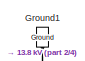
[diagram: root canvas - part 1/4, top left region]
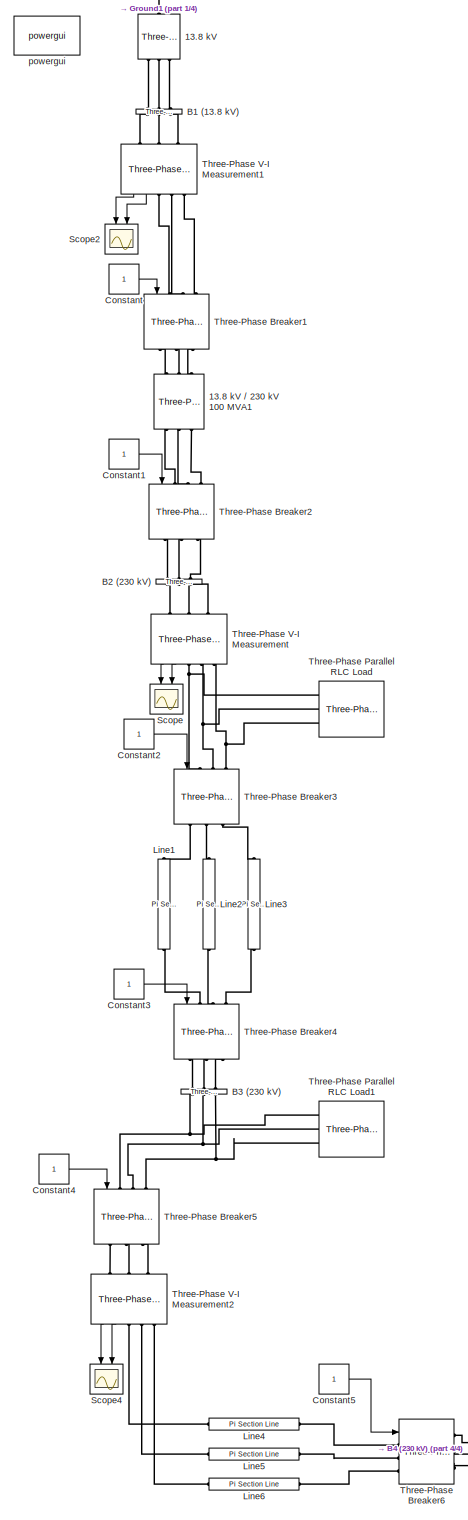
[diagram: root canvas - part 2/4, left side, full height]
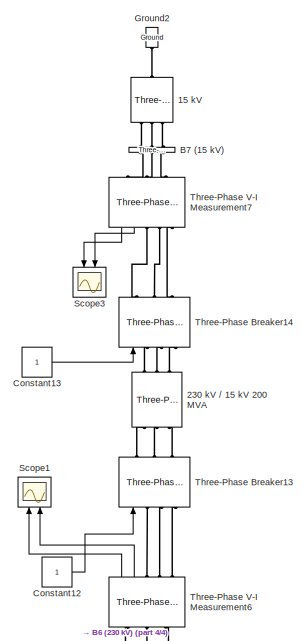
[diagram: root canvas - part 3/4, top right region]
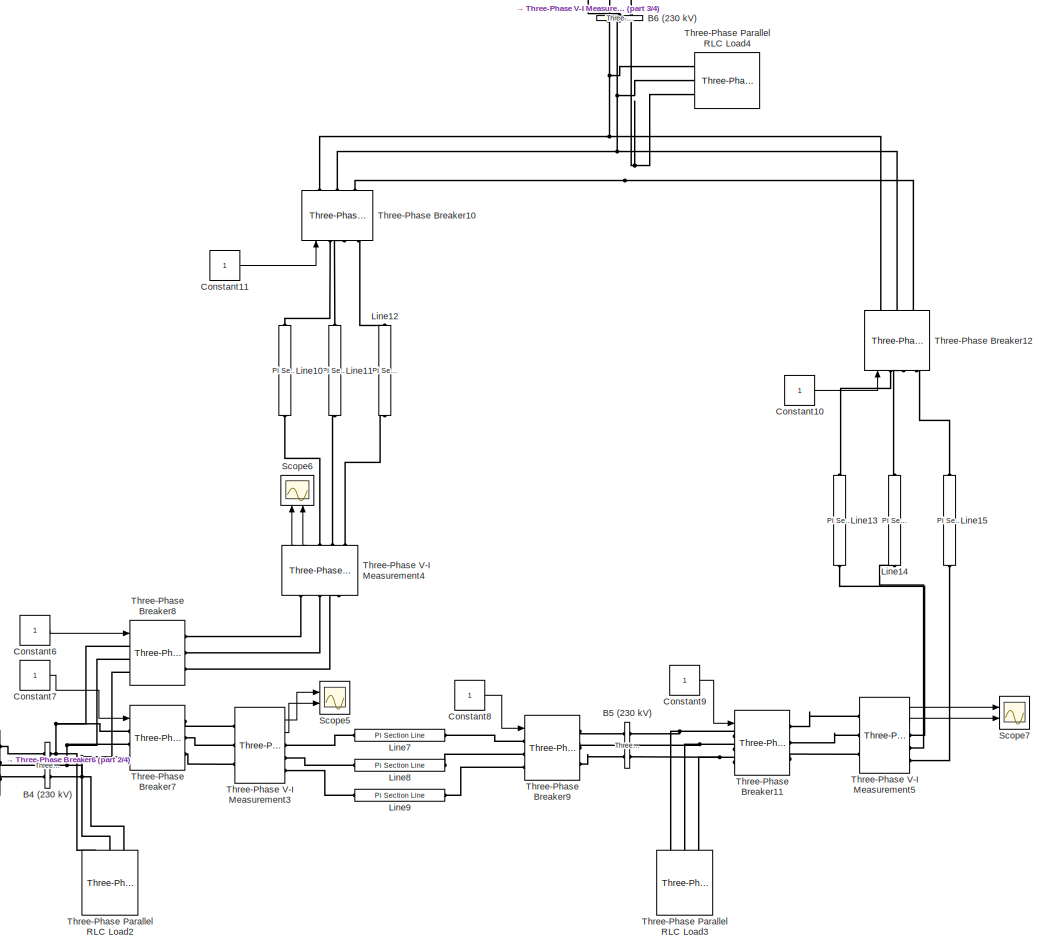
[diagram: root canvas - part 4/4, bottom center region]
MODEL slx_fed54474d881
KIND model
CONFIG AbsTol = auto
CONFIG EnableMultiTasking = on
CONFIG FixedStep = auto
CONFIG MaxStep = auto
CONFIG MinStep = auto
CONFIG RelTol = 1e-3
CONFIG SampleTimeConstraint = Unconstrained
CONFIG Solver = VariableStepAuto
CONFIG SolverName = VariableStepAuto
CONFIG StartTime = 0.0
CONFIG StopTime = .5
BLOCK [Reference] 13.8 kV  REF=powerlib/Electrical
Sources/Three-Phase
Programmable
Voltage Source
  Ports = [0, 0, 0, 0, 0, 1, 3]
  SourceBlock = powerlib/Electrical\nSources/Three-Phase\nProgrammable\nVoltage Source
  SourceProductBaseCode = PS
  SourceProductName = Simscape Power Systems
  SourceType = Three-Phase Programmable Voltage Source
BLOCK [Reference] 13.8 kV // 230 kV 100 MVA1  REF=powerlib/Elements/Three-Phase
Transformer
(Two Windings)
  AttributesFormatString = \n
  Ports = [0, 0, 0, 0, 0, 3, 3]
  SourceBlock = powerlib/Elements/Three-Phase\nTransformer\n(Two Windings)
  SourceProductBaseCode = PS
  SourceProductName = Simscape Power Systems
  SourceType = Three-Phase Transformer (Two Windings)
BLOCK [Reference] 15 kV  REF=powerlib/Electrical
Sources/Three-Phase
Programmable
Voltage Source
  Ports = [0, 0, 0, 0, 0, 1, 3]
  SourceBlock = powerlib/Electrical\nSources/Three-Phase\nProgrammable\nVoltage Source
  SourceProductBaseCode = PS
  SourceProductName = Simscape Power Systems
  SourceType = Three-Phase Programmable Voltage Source
BLOCK [Reference] 230 kV // 15 kV 200 MVA  REF=powerlib/Elements/Three-Phase
Transformer
(Two Windings)
  AttributesFormatString = \n
  Ports = [0, 0, 0, 0, 0, 3, 3]
  SourceBlock = powerlib/Elements/Three-Phase\nTransformer\n(Two Windings)
  SourceProductBaseCode = PS
  SourceProductName = Simscape Power Systems
  SourceType = Three-Phase Transformer (Two Windings)
BLOCK [Reference] B1 (13.8 kV)  REF=powerlib/Measurements/Three-Phase
V-I Measurement
  Ports = [0, 0, 0, 0, 0, 3, 3]
  SourceBlock = powerlib/Measurements/Three-Phase\nV-I Measurement
  SourceProductBaseCode = PS
  SourceProductName = Simscape Power Systems
  SourceType = Three-Phase VI Measurement
BLOCK [Reference] B2 (230 kV)  REF=powerlib/Measurements/Three-Phase
V-I Measurement
  Ports = [0, 0, 0, 0, 0, 3, 3]
  SourceBlock = powerlib/Measurements/Three-Phase\nV-I Measurement
  SourceProductBaseCode = PS
  SourceProductName = Simscape Power Systems
  SourceType = Three-Phase VI Measurement
BLOCK [Reference] B3 (230 kV)  REF=powerlib/Measurements/Three-Phase
V-I Measurement
  Ports = [0, 0, 0, 0, 0, 3, 3]
  SourceBlock = powerlib/Measurements/Three-Phase\nV-I Measurement
  SourceProductBaseCode = PS
  SourceProductName = Simscape Power Systems
  SourceType = Three-Phase VI Measurement
BLOCK [Reference] B4 (230 kV)  REF=powerlib/Measurements/Three-Phase
V-I Measurement
  Ports = [0, 0, 0, 0, 0, 3, 3]
  SourceBlock = powerlib/Measurements/Three-Phase\nV-I Measurement
  SourceProductBaseCode = PS
  SourceProductName = Simscape Power Systems
  SourceType = Three-Phase VI Measurement
BLOCK [Reference] B5 (230 kV)  REF=powerlib/Measurements/Three-Phase
V-I Measurement
  Ports = [0, 0, 0, 0, 0, 3, 3]
  SourceBlock = powerlib/Measurements/Three-Phase\nV-I Measurement
  SourceProductBaseCode = PS
  SourceProductName = Simscape Power Systems
  SourceType = Three-Phase VI Measurement
BLOCK [Reference] B6 (230 kV)  REF=powerlib/Measurements/Three-Phase
V-I Measurement
  Ports = [0, 0, 0, 0, 0, 3, 3]
  SourceBlock = powerlib/Measurements/Three-Phase\nV-I Measurement
  SourceProductBaseCode = PS
  SourceProductName = Simscape Power Systems
  SourceType = Three-Phase VI Measurement
BLOCK [Reference] B7 (15 kV)  REF=powerlib/Measurements/Three-Phase
V-I Measurement
  Ports = [0, 0, 0, 0, 0, 3, 3]
  SourceBlock = powerlib/Measurements/Three-Phase\nV-I Measurement
  SourceProductBaseCode = PS
  SourceProductName = Simscape Power Systems
  SourceType = Three-Phase VI Measurement
BLOCK [Constant] Constant
BLOCK [Constant] Constant1
BLOCK [Constant] Constant10
BLOCK [Constant] Constant11
BLOCK [Constant] Constant12
BLOCK [Constant] Constant13
BLOCK [Constant] Constant2
BLOCK [Constant] Constant3
BLOCK [Constant] Constant4
BLOCK [Constant] Constant5
BLOCK [Constant] Constant6
BLOCK [Constant] Constant7
BLOCK [Constant] Constant8
BLOCK [Constant] Constant9
BLOCK [Reference] Ground1  REF=powerlib/Elements/Ground
  AttributesFormatString = \n
  Ports = [0, 0, 0, 0, 0, 1]
  SourceBlock = powerlib/Elements/Ground
  SourceProductBaseCode = PS
  SourceProductName = Simscape Power Systems
  SourceType = Ground
BLOCK [Reference] Ground2  REF=powerlib/Elements/Ground
  AttributesFormatString = \n
  Ports = [0, 0, 0, 0, 0, 1]
  SourceBlock = powerlib/Elements/Ground
  SourceProductBaseCode = PS
  SourceProductName = Simscape Power Systems
  SourceType = Ground
BLOCK [Reference] Line1  REF=powerlib/Elements/Pi Section Line
  AttributesFormatString = \n
  Ports = [0, 0, 0, 0, 0, 1, 1]
  SourceBlock = powerlib/Elements/Pi Section Line
  SourceProductBaseCode = PS
  SourceProductName = Simscape Power Systems
  SourceType = Pi Section Line
BLOCK [Reference] Line10  REF=powerlib/Elements/Pi Section Line
  AttributesFormatString = \n
  Ports = [0, 0, 0, 0, 0, 1, 1]
  SourceBlock = powerlib/Elements/Pi Section Line
  SourceProductBaseCode = PS
  SourceProductName = Simscape Power Systems
  SourceType = Pi Section Line
BLOCK [Reference] Line11  REF=powerlib/Elements/Pi Section Line
  AttributesFormatString = \n
  Ports = [0, 0, 0, 0, 0, 1, 1]
  SourceBlock = powerlib/Elements/Pi Section Line
  SourceProductBaseCode = PS
  SourceProductName = Simscape Power Systems
  SourceType = Pi Section Line
BLOCK [Reference] Line12  REF=powerlib/Elements/Pi Section Line
  AttributesFormatString = \n
  Ports = [0, 0, 0, 0, 0, 1, 1]
  SourceBlock = powerlib/Elements/Pi Section Line
  SourceProductBaseCode = PS
  SourceProductName = Simscape Power Systems
  SourceType = Pi Section Line
BLOCK [Reference] Line13  REF=powerlib/Elements/Pi Section Line
  AttributesFormatString = \n
  Ports = [0, 0, 0, 0, 0, 1, 1]
  SourceBlock = powerlib/Elements/Pi Section Line
  SourceProductBaseCode = PS
  SourceProductName = Simscape Power Systems
  SourceType = Pi Section Line
BLOCK [Reference] Line14  REF=powerlib/Elements/Pi Section Line
  AttributesFormatString = \n
  Ports = [0, 0, 0, 0, 0, 1, 1]
  SourceBlock = powerlib/Elements/Pi Section Line
  SourceProductBaseCode = PS
  SourceProductName = Simscape Power Systems
  SourceType = Pi Section Line
BLOCK [Reference] Line15  REF=powerlib/Elements/Pi Section Line
  AttributesFormatString = \n
  Ports = [0, 0, 0, 0, 0, 1, 1]
  SourceBlock = powerlib/Elements/Pi Section Line
  SourceProductBaseCode = PS
  SourceProductName = Simscape Power Systems
  SourceType = Pi Section Line
BLOCK [Reference] Line2  REF=powerlib/Elements/Pi Section Line
  AttributesFormatString = \n
  Ports = [0, 0, 0, 0, 0, 1, 1]
  SourceBlock = powerlib/Elements/Pi Section Line
  SourceProductBaseCode = PS
  SourceProductName = Simscape Power Systems
  SourceType = Pi Section Line
BLOCK [Reference] Line3  REF=powerlib/Elements/Pi Section Line
  AttributesFormatString = \n
  Ports = [0, 0, 0, 0, 0, 1, 1]
  SourceBlock = powerlib/Elements/Pi Section Line
  SourceProductBaseCode = PS
  SourceProductName = Simscape Power Systems
  SourceType = Pi Section Line
BLOCK [Reference] Line4  REF=powerlib/Elements/Pi Section Line
  AttributesFormatString = \n
  Ports = [0, 0, 0, 0, 0, 1, 1]
  SourceBlock = powerlib/Elements/Pi Section Line
  SourceProductBaseCode = PS
  SourceProductName = Simscape Power Systems
  SourceType = Pi Section Line
BLOCK [Reference] Line5  REF=powerlib/Elements/Pi Section Line
  AttributesFormatString = \n
  Ports = [0, 0, 0, 0, 0, 1, 1]
  SourceBlock = powerlib/Elements/Pi Section Line
  SourceProductBaseCode = PS
  SourceProductName = Simscape Power Systems
  SourceType = Pi Section Line
BLOCK [Reference] Line6  REF=powerlib/Elements/Pi Section Line
  AttributesFormatString = \n
  Ports = [0, 0, 0, 0, 0, 1, 1]
  SourceBlock = powerlib/Elements/Pi Section Line
  SourceProductBaseCode = PS
  SourceProductName = Simscape Power Systems
  SourceType = Pi Section Line
BLOCK [Reference] Line7  REF=powerlib/Elements/Pi Section Line
  AttributesFormatString = \n
  Ports = [0, 0, 0, 0, 0, 1, 1]
  SourceBlock = powerlib/Elements/Pi Section Line
  SourceProductBaseCode = PS
  SourceProductName = Simscape Power Systems
  SourceType = Pi Section Line
BLOCK [Reference] Line8  REF=powerlib/Elements/Pi Section Line
  AttributesFormatString = \n
  Ports = [0, 0, 0, 0, 0, 1, 1]
  SourceBlock = powerlib/Elements/Pi Section Line
  SourceProductBaseCode = PS
  SourceProductName = Simscape Power Systems
  SourceType = Pi Section Line
BLOCK [Reference] Line9  REF=powerlib/Elements/Pi Section Line
  AttributesFormatString = \n
  Ports = [0, 0, 0, 0, 0, 1, 1]
  SourceBlock = powerlib/Elements/Pi Section Line
  SourceProductBaseCode = PS
  SourceProductName = Simscape Power Systems
  SourceType = Pi Section Line
BLOCK [Scope] Scope
  Floating = off
  NumInputPorts = 2
  Ports = [2]
  ScopeSpecificationString = C++SS(StrPVP('Location','[1, 46, 1281, 769]'),StrPVP('Open','off'),MxPVP('AxesTitles',53,'struct(''axes1'',''%<SignalLabel>'',''axes2'',''%<SignalLabel>'')'),MxPVP('ScopeGraphics',56,'struct(''FigureColor'',''[0.5 0.5 0.5]'',''AxesColor'',''[0 0 0]'',''AxesTickColor'',''[1 1 1]'',''LineColors'',''[1 1 0;1 0 1;0 1 1;1 0 0;0 1 0;0 0 1]'',''LineStyles'',''-|-|-|-|-|-'',''LineWidths'',''[0.5 0.5 0.5 0...<+311ch>
BLOCK [Scope] Scope1
  Floating = off
  NumInputPorts = 2
  Ports = [2]
  ScopeSpecificationString = C++SS(StrPVP('Location','[1, 46, 1281, 769]'),StrPVP('Open','off'),MxPVP('AxesTitles',53,'struct(''axes1'',''%<SignalLabel>'',''axes2'',''%<SignalLabel>'')'),MxPVP('ScopeGraphics',56,'struct(''FigureColor'',''[0.5 0.5 0.5]'',''AxesColor'',''[0 0 0]'',''AxesTickColor'',''[1 1 1]'',''LineColors'',''[1 1 0;1 0 1;0 1 1;1 0 0;0 1 0;0 0 1]'',''LineStyles'',''-|-|-|-|-|-'',''LineWidths'',''[0.5 0.5 0.5 0...<+343ch>  <repeated x7 — deduplicated; at blocks: Scope1, Scope2, Scope3, Scope4, Scope5, Scope6, Scope7>
BLOCK [Scope] Scope2
  Floating = off
  NumInputPorts = 2
  Ports = [2]
BLOCK [Scope] Scope3
  Floating = off
  NumInputPorts = 2
  Ports = [2]
BLOCK [Scope] Scope4
  Floating = off
  NumInputPorts = 2
  Ports = [2]
BLOCK [Scope] Scope5
  Floating = off
  NumInputPorts = 2
  Ports = [2]
BLOCK [Scope] Scope6
  Floating = off
  NumInputPorts = 2
  Ports = [2]
BLOCK [Scope] Scope7
  Floating = off
  NumInputPorts = 2
  Ports = [2]
BLOCK [Reference] Three-Phase Breaker1  REF=powerlib/Elements/Three-Phase Breaker
  Ports = [1, 0, 0, 0, 0, 3, 3]
  SourceBlock = powerlib/Elements/Three-Phase Breaker
  SourceProductBaseCode = PS
  SourceProductName = Simscape Power Systems
  SourceType = Three-Phase Breaker
BLOCK [Reference] Three-Phase Breaker10  REF=powerlib/Elements/Three-Phase Breaker
  Ports = [1, 0, 0, 0, 0, 3, 3]
  SourceBlock = powerlib/Elements/Three-Phase Breaker
  SourceProductBaseCode = PS
  SourceProductName = Simscape Power Systems
  SourceType = Three-Phase Breaker
BLOCK [Reference] Three-Phase Breaker11  REF=powerlib/Elements/Three-Phase Breaker
  Ports = [1, 0, 0, 0, 0, 3, 3]
  SourceBlock = powerlib/Elements/Three-Phase Breaker
  SourceProductBaseCode = PS
  SourceProductName = Simscape Power Systems
  SourceType = Three-Phase Breaker
BLOCK [Reference] Three-Phase Breaker12  REF=powerlib/Elements/Three-Phase Breaker
  Ports = [1, 0, 0, 0, 0, 3, 3]
  SourceBlock = powerlib/Elements/Three-Phase Breaker
  SourceProductBaseCode = PS
  SourceProductName = Simscape Power Systems
  SourceType = Three-Phase Breaker
BLOCK [Reference] Three-Phase Breaker13  REF=powerlib/Elements/Three-Phase Breaker
  Ports = [1, 0, 0, 0, 0, 3, 3]
  SourceBlock = powerlib/Elements/Three-Phase Breaker
  SourceProductBaseCode = PS
  SourceProductName = Simscape Power Systems
  SourceType = Three-Phase Breaker
BLOCK [Reference] Three-Phase Breaker14  REF=powerlib/Elements/Three-Phase Breaker
  Ports = [1, 0, 0, 0, 0, 3, 3]
  SourceBlock = powerlib/Elements/Three-Phase Breaker
  SourceProductBaseCode = PS
  SourceProductName = Simscape Power Systems
  SourceType = Three-Phase Breaker
BLOCK [Reference] Three-Phase Breaker2  REF=powerlib/Elements/Three-Phase Breaker
  Ports = [1, 0, 0, 0, 0, 3, 3]
  SourceBlock = powerlib/Elements/Three-Phase Breaker
  SourceProductBaseCode = PS
  SourceProductName = Simscape Power Systems
  SourceType = Three-Phase Breaker
BLOCK [Reference] Three-Phase Breaker3  REF=powerlib/Elements/Three-Phase Breaker
  Ports = [1, 0, 0, 0, 0, 3, 3]
  SourceBlock = powerlib/Elements/Three-Phase Breaker
  SourceProductBaseCode = PS
  SourceProductName = Simscape Power Systems
  SourceType = Three-Phase Breaker
BLOCK [Reference] Three-Phase Breaker4  REF=powerlib/Elements/Three-Phase Breaker
  Ports = [1, 0, 0, 0, 0, 3, 3]
  SourceBlock = powerlib/Elements/Three-Phase Breaker
  SourceProductBaseCode = PS
  SourceProductName = Simscape Power Systems
  SourceType = Three-Phase Breaker
BLOCK [Reference] Three-Phase Breaker5  REF=powerlib/Elements/Three-Phase Breaker
  Ports = [1, 0, 0, 0, 0, 3, 3]
  SourceBlock = powerlib/Elements/Three-Phase Breaker
  SourceProductBaseCode = PS
  SourceProductName = Simscape Power Systems
  SourceType = Three-Phase Breaker
BLOCK [Reference] Three-Phase Breaker6  REF=powerlib/Elements/Three-Phase Breaker
  Ports = [1, 0, 0, 0, 0, 3, 3]
  SourceBlock = powerlib/Elements/Three-Phase Breaker
  SourceProductBaseCode = PS
  SourceProductName = Simscape Power Systems
  SourceType = Three-Phase Breaker
BLOCK [Reference] Three-Phase Breaker7  REF=powerlib/Elements/Three-Phase Breaker
  Ports = [1, 0, 0, 0, 0, 3, 3]
  SourceBlock = powerlib/Elements/Three-Phase Breaker
  SourceProductBaseCode = PS
  SourceProductName = Simscape Power Systems
  SourceType = Three-Phase Breaker
BLOCK [Reference] Three-Phase Breaker8  REF=powerlib/Elements/Three-Phase Breaker
  Ports = [1, 0, 0, 0, 0, 3, 3]
  SourceBlock = powerlib/Elements/Three-Phase Breaker
  SourceProductBaseCode = PS
  SourceProductName = Simscape Power Systems
  SourceType = Three-Phase Breaker
BLOCK [Reference] Three-Phase Breaker9  REF=powerlib/Elements/Three-Phase Breaker
  Ports = [1, 0, 0, 0, 0, 3, 3]
  SourceBlock = powerlib/Elements/Three-Phase Breaker
  SourceProductBaseCode = PS
  SourceProductName = Simscape Power Systems
  SourceType = Three-Phase Breaker
BLOCK [Reference] Three-Phase Parallel RLC Load  REF=powerlib/Elements/Three-Phase
Parallel RLC Load
  AttributesFormatString = \n
  Ports = [0, 0, 0, 0, 0, 3]
  SourceBlock = powerlib/Elements/Three-Phase\nParallel RLC Load
  SourceProductBaseCode = PS
  SourceProductName = Simscape Power Systems
  SourceType = Three-Phase Parallel RLC Load
BLOCK [Reference] Three-Phase Parallel RLC Load1  REF=powerlib/Elements/Three-Phase
Parallel RLC Load
  AttributesFormatString = \n
  Ports = [0, 0, 0, 0, 0, 3]
  SourceBlock = powerlib/Elements/Three-Phase\nParallel RLC Load
  SourceProductBaseCode = PS
  SourceProductName = Simscape Power Systems
  SourceType = Three-Phase Parallel RLC Load
BLOCK [Reference] Three-Phase Parallel RLC Load2  REF=powerlib/Elements/Three-Phase
Parallel RLC Load
  AttributesFormatString = \n
  Ports = [0, 0, 0, 0, 0, 3]
  SourceBlock = powerlib/Elements/Three-Phase\nParallel RLC Load
  SourceProductBaseCode = PS
  SourceProductName = Simscape Power Systems
  SourceType = Three-Phase Parallel RLC Load
BLOCK [Reference] Three-Phase Parallel RLC Load3  REF=powerlib/Elements/Three-Phase
Parallel RLC Load
  AttributesFormatString = \n
  Ports = [0, 0, 0, 0, 0, 3]
  SourceBlock = powerlib/Elements/Three-Phase\nParallel RLC Load
  SourceProductBaseCode = PS
  SourceProductName = Simscape Power Systems
  SourceType = Three-Phase Parallel RLC Load
BLOCK [Reference] Three-Phase Parallel RLC Load4  REF=powerlib/Elements/Three-Phase
Parallel RLC Load
  AttributesFormatString = \n
  Ports = [0, 0, 0, 0, 0, 3]
  SourceBlock = powerlib/Elements/Three-Phase\nParallel RLC Load
  SourceProductBaseCode = PS
  SourceProductName = Simscape Power Systems
  SourceType = Three-Phase Parallel RLC Load
BLOCK [Reference] Three-Phase V-I Measurement  REF=powerlib/Measurements/Three-Phase
V-I Measurement
  Ports = [0, 2, 0, 0, 0, 3, 3]
  SourceBlock = powerlib/Measurements/Three-Phase\nV-I Measurement
  SourceProductBaseCode = PS
  SourceProductName = Simscape Power Systems
  SourceType = Three-Phase VI Measurement
BLOCK [Reference] Three-Phase V-I Measurement1  REF=powerlib/Measurements/Three-Phase
V-I Measurement
  Ports = [0, 2, 0, 0, 0, 3, 3]
  SourceBlock = powerlib/Measurements/Three-Phase\nV-I Measurement
  SourceProductBaseCode = PS
  SourceProductName = Simscape Power Systems
  SourceType = Three-Phase VI Measurement
BLOCK [Reference] Three-Phase V-I Measurement2  REF=powerlib/Measurements/Three-Phase
V-I Measurement
  Ports = [0, 2, 0, 0, 0, 3, 3]
  SourceBlock = powerlib/Measurements/Three-Phase\nV-I Measurement
  SourceProductBaseCode = PS
  SourceProductName = Simscape Power Systems
  SourceType = Three-Phase VI Measurement
BLOCK [Reference] Three-Phase V-I Measurement3  REF=powerlib/Measurements/Three-Phase
V-I Measurement
  Ports = [0, 2, 0, 0, 0, 3, 3]
  SourceBlock = powerlib/Measurements/Three-Phase\nV-I Measurement
  SourceProductBaseCode = PS
  SourceProductName = Simscape Power Systems
  SourceType = Three-Phase VI Measurement
BLOCK [Reference] Three-Phase V-I Measurement4  REF=powerlib/Measurements/Three-Phase
V-I Measurement
  Ports = [0, 2, 0, 0, 0, 3, 3]
  SourceBlock = powerlib/Measurements/Three-Phase\nV-I Measurement
  SourceProductBaseCode = PS
  SourceProductName = Simscape Power Systems
  SourceType = Three-Phase VI Measurement
BLOCK [Reference] Three-Phase V-I Measurement5  REF=powerlib/Measurements/Three-Phase
V-I Measurement
  Ports = [0, 2, 0, 0, 0, 3, 3]
  SourceBlock = powerlib/Measurements/Three-Phase\nV-I Measurement
  SourceProductBaseCode = PS
  SourceProductName = Simscape Power Systems
  SourceType = Three-Phase VI Measurement
BLOCK [Reference] Three-Phase V-I Measurement6  REF=powerlib/Measurements/Three-Phase
V-I Measurement
  Ports = [0, 2, 0, 0, 0, 3, 3]
  SourceBlock = powerlib/Measurements/Three-Phase\nV-I Measurement
  SourceProductBaseCode = PS
  SourceProductName = Simscape Power Systems
  SourceType = Three-Phase VI Measurement
BLOCK [Reference] Three-Phase V-I Measurement7  REF=powerlib/Measurements/Three-Phase
V-I Measurement
  Ports = [0, 2, 0, 0, 0, 3, 3]
  SourceBlock = powerlib/Measurements/Three-Phase\nV-I Measurement
  SourceProductBaseCode = PS
  SourceProductName = Simscape Power Systems
  SourceType = Three-Phase VI Measurement
BLOCK [Reference] powergui  REF=powerlib/powergui
  Ports = []
  Priority = 1
  SourceBlock = powerlib/powergui
  SourceProductBaseCode = PS
  SourceProductName = Simscape Power Systems
  SourceType = PSB option menu block
LINE Constant10:1 -> Three-Phase Breaker12:1
LINE Constant11:1 -> Three-Phase Breaker10:1
LINE Constant12:1 -> Three-Phase Breaker13:1
LINE Constant13:1 -> Three-Phase Breaker14:1
LINE Constant1:1 -> Three-Phase Breaker2:1
LINE Constant2:1 -> Three-Phase Breaker3:1
LINE Constant3:1 -> Three-Phase Breaker4:1
LINE Constant4:1 -> Three-Phase Breaker5:1
LINE Constant5:1 -> Three-Phase Breaker6:1
LINE Constant6:1 -> Three-Phase Breaker8:1
LINE Constant7:1 -> Three-Phase Breaker7:1
LINE Constant8:1 -> Three-Phase Breaker9:1
LINE Constant9:1 -> Three-Phase Breaker11:1
LINE Constant:1 -> Three-Phase Breaker1:1
LINE Three-Phase V-I Measurement1:1 -> Scope2:1
LINE Three-Phase V-I Measurement1:2 -> Scope2:2
LINE Three-Phase V-I Measurement2:1 -> Scope4:1
LINE Three-Phase V-I Measurement2:2 -> Scope4:2
LINE Three-Phase V-I Measurement3:1 -> Scope5:1
LINE Three-Phase V-I Measurement3:2 -> Scope5:2
LINE Three-Phase V-I Measurement4:1 -> Scope6:1
LINE Three-Phase V-I Measurement4:2 -> Scope6:2
LINE Three-Phase V-I Measurement5:1 -> Scope7:1
LINE Three-Phase V-I Measurement5:2 -> Scope7:2
LINE Three-Phase V-I Measurement6:1 -> Scope1:1
LINE Three-Phase V-I Measurement6:2 -> Scope1:2
LINE Three-Phase V-I Measurement7:1 -> Scope3:1
LINE Three-Phase V-I Measurement7:2 -> Scope3:2
LINE Three-Phase V-I Measurement:1 -> Scope:1
LINE Three-Phase V-I Measurement:2 -> Scope:2
PLINE 13.8 kV // 230 kV 100 MVA1:LConn1 -- Three-Phase Breaker1:RConn1
PLINE 13.8 kV // 230 kV 100 MVA1:LConn2 -- Three-Phase Breaker1:RConn2
PLINE 13.8 kV // 230 kV 100 MVA1:LConn3 -- Three-Phase Breaker1:RConn3
PLINE 13.8 kV // 230 kV 100 MVA1:RConn1 -- Three-Phase Breaker2:LConn1
PLINE 13.8 kV // 230 kV 100 MVA1:RConn2 -- Three-Phase Breaker2:LConn2
PLINE 13.8 kV // 230 kV 100 MVA1:RConn3 -- Three-Phase Breaker2:LConn3
PLINE 13.8 kV:LConn1 -- Ground1:LConn1
PLINE 13.8 kV:RConn1 -- B1 (13.8 kV):LConn1
PLINE 13.8 kV:RConn2 -- B1 (13.8 kV):LConn2
PLINE 13.8 kV:RConn3 -- B1 (13.8 kV):LConn3
PLINE 15 kV:LConn1 -- Ground2:LConn1
PLINE 15 kV:RConn1 -- B7 (15 kV):RConn1
PLINE 15 kV:RConn2 -- B7 (15 kV):RConn2
PLINE 15 kV:RConn3 -- B7 (15 kV):RConn3
PLINE 230 kV // 15 kV 200 MVA:LConn1 -- Three-Phase Breaker14:LConn1
PLINE 230 kV // 15 kV 200 MVA:LConn2 -- Three-Phase Breaker14:LConn2
PLINE 230 kV // 15 kV 200 MVA:LConn3 -- Three-Phase Breaker14:LConn3
PLINE 230 kV // 15 kV 200 MVA:RConn1 -- Three-Phase Breaker13:RConn1
PLINE 230 kV // 15 kV 200 MVA:RConn2 -- Three-Phase Breaker13:RConn2
PLINE 230 kV // 15 kV 200 MVA:RConn3 -- Three-Phase Breaker13:RConn3
PLINE B1 (13.8 kV):RConn1 -- Three-Phase V-I Measurement1:LConn1
PLINE B1 (13.8 kV):RConn2 -- Three-Phase V-I Measurement1:LConn2
PLINE B1 (13.8 kV):RConn3 -- Three-Phase V-I Measurement1:LConn3
PLINE B2 (230 kV):LConn1 -- Three-Phase Breaker2:RConn1
PLINE B2 (230 kV):LConn2 -- Three-Phase Breaker2:RConn2
PLINE B2 (230 kV):LConn3 -- Three-Phase Breaker2:RConn3
PLINE B2 (230 kV):RConn1 -- Three-Phase V-I Measurement:LConn1
PLINE B2 (230 kV):RConn2 -- Three-Phase V-I Measurement:LConn2
PLINE B2 (230 kV):RConn3 -- Three-Phase V-I Measurement:LConn3
PLINE B3 (230 kV):LConn1 -- Three-Phase Breaker4:RConn1
PLINE B3 (230 kV):LConn2 -- Three-Phase Breaker4:RConn2
PLINE B3 (230 kV):LConn3 -- Three-Phase Breaker4:RConn3
PNET net1: B3 (230 kV):RConn1 -- Three-Phase Breaker5:LConn1 -- Three-Phase Parallel RLC Load1:LConn1
PNET net2: B3 (230 kV):RConn2 -- Three-Phase Breaker5:LConn2 -- Three-Phase Parallel RLC Load1:LConn2
PNET net3: B3 (230 kV):RConn3 -- Three-Phase Breaker5:LConn3 -- Three-Phase Parallel RLC Load1:LConn3
PNET net4: B4 (230 kV):LConn1 -- Three-Phase Breaker7:LConn1 -- Three-Phase Breaker8:LConn1 -- Three-Phase Parallel RLC Load2:LConn1
PNET net5: B4 (230 kV):LConn2 -- Three-Phase Breaker7:LConn2 -- Three-Phase Breaker8:LConn2 -- Three-Phase Parallel RLC Load2:LConn2
PNET net6: B4 (230 kV):LConn3 -- Three-Phase Breaker7:LConn3 -- Three-Phase Breaker8:LConn3 -- Three-Phase Parallel RLC Load2:LConn3
PLINE B4 (230 kV):RConn1 -- Three-Phase Breaker6:RConn1
PLINE B4 (230 kV):RConn2 -- Three-Phase Breaker6:RConn2
PLINE B4 (230 kV):RConn3 -- Three-Phase Breaker6:RConn3
PNET net7: B5 (230 kV):LConn1 -- Three-Phase Breaker11:LConn1 -- Three-Phase Parallel RLC Load3:LConn1
PNET net8: B5 (230 kV):LConn2 -- Three-Phase Breaker11:LConn2 -- Three-Phase Parallel RLC Load3:LConn2
PNET net9: B5 (230 kV):LConn3 -- Three-Phase Breaker11:LConn3 -- Three-Phase Parallel RLC Load3:LConn3
PLINE B5 (230 kV):RConn1 -- Three-Phase Breaker9:RConn1
PLINE B5 (230 kV):RConn2 -- Three-Phase Breaker9:RConn2
PLINE B5 (230 kV):RConn3 -- Three-Phase Breaker9:RConn3
PNET net10: B6 (230 kV):LConn1 -- Three-Phase Breaker10:RConn1 -- Three-Phase Breaker12:RConn1 -- Three-Phase Parallel RLC Load4:LConn1
PNET net11: B6 (230 kV):LConn2 -- Three-Phase Breaker10:RConn2 -- Three-Phase Breaker12:RConn2 -- Three-Phase Parallel RLC Load4:LConn2
PNET net12: B6 (230 kV):LConn3 -- Three-Phase Breaker10:RConn3 -- Three-Phase Breaker12:RConn3 -- Three-Phase Parallel RLC Load4:LConn3
PLINE B6 (230 kV):RConn1 -- Three-Phase V-I Measurement6:LConn1
PLINE B6 (230 kV):RConn2 -- Three-Phase V-I Measurement6:LConn2
PLINE B6 (230 kV):RConn3 -- Three-Phase V-I Measurement6:LConn3
PLINE B7 (15 kV):LConn1 -- Three-Phase V-I Measurement7:LConn1
PLINE B7 (15 kV):LConn2 -- Three-Phase V-I Measurement7:LConn2
PLINE B7 (15 kV):LConn3 -- Three-Phase V-I Measurement7:LConn3
PLINE Line10:LConn1 -- Three-Phase V-I Measurement4:RConn1
PLINE Line10:RConn1 -- Three-Phase Breaker10:LConn1
PLINE Line11:LConn1 -- Three-Phase V-I Measurement4:RConn2
PLINE Line11:RConn1 -- Three-Phase Breaker10:LConn2
PLINE Line12:LConn1 -- Three-Phase V-I Measurement4:RConn3
PLINE Line12:RConn1 -- Three-Phase Breaker10:LConn3
PLINE Line13:LConn1 -- Three-Phase V-I Measurement5:RConn1
PLINE Line13:RConn1 -- Three-Phase Breaker12:LConn1
PLINE Line14:LConn1 -- Three-Phase V-I Measurement5:RConn2
PLINE Line14:RConn1 -- Three-Phase Breaker12:LConn2
PLINE Line15:LConn1 -- Three-Phase V-I Measurement5:RConn3
PLINE Line15:RConn1 -- Three-Phase Breaker12:LConn3
PLINE Line1:LConn1 -- Three-Phase Breaker3:RConn1
PLINE Line1:RConn1 -- Three-Phase Breaker4:LConn1
PLINE Line2:LConn1 -- Three-Phase Breaker3:RConn2
PLINE Line2:RConn1 -- Three-Phase Breaker4:LConn2
PLINE Line3:LConn1 -- Three-Phase Breaker3:RConn3
PLINE Line3:RConn1 -- Three-Phase Breaker4:LConn3
PLINE Line4:LConn1 -- Three-Phase V-I Measurement2:RConn1
PLINE Line4:RConn1 -- Three-Phase Breaker6:LConn1
PLINE Line5:LConn1 -- Three-Phase V-I Measurement2:RConn2
PLINE Line5:RConn1 -- Three-Phase Breaker6:LConn2
PLINE Line6:LConn1 -- Three-Phase V-I Measurement2:RConn3
PLINE Line6:RConn1 -- Three-Phase Breaker6:LConn3
PLINE Line7:LConn1 -- Three-Phase V-I Measurement3:RConn1
PLINE Line7:RConn1 -- Three-Phase Breaker9:LConn1
PLINE Line8:LConn1 -- Three-Phase V-I Measurement3:RConn2
PLINE Line8:RConn1 -- Three-Phase Breaker9:LConn2
PLINE Line9:LConn1 -- Three-Phase V-I Measurement3:RConn3
PLINE Line9:RConn1 -- Three-Phase Breaker9:LConn3
PLINE Three-Phase Breaker11:RConn1 -- Three-Phase V-I Measurement5:LConn1
PLINE Three-Phase Breaker11:RConn2 -- Three-Phase V-I Measurement5:LConn2
PLINE Three-Phase Breaker11:RConn3 -- Three-Phase V-I Measurement5:LConn3
PLINE Three-Phase Breaker13:LConn1 -- Three-Phase V-I Measurement6:RConn1
PLINE Three-Phase Breaker13:LConn2 -- Three-Phase V-I Measurement6:RConn2
PLINE Three-Phase Breaker13:LConn3 -- Three-Phase V-I Measurement6:RConn3
PLINE Three-Phase Breaker14:RConn1 -- Three-Phase V-I Measurement7:RConn1
PLINE Three-Phase Breaker14:RConn2 -- Three-Phase V-I Measurement7:RConn2
PLINE Three-Phase Breaker14:RConn3 -- Three-Phase V-I Measurement7:RConn3
PLINE Three-Phase Breaker1:LConn1 -- Three-Phase V-I Measurement1:RConn1
PLINE Three-Phase Breaker1:LConn2 -- Three-Phase V-I Measurement1:RConn2
PLINE Three-Phase Breaker1:LConn3 -- Three-Phase V-I Measurement1:RConn3
PNET net13: Three-Phase Breaker3:LConn1 -- Three-Phase Parallel RLC Load:LConn1 -- Three-Phase V-I Measurement:RConn1
PNET net14: Three-Phase Breaker3:LConn2 -- Three-Phase Parallel RLC Load:LConn2 -- Three-Phase V-I Measurement:RConn2
PNET net15: Three-Phase Breaker3:LConn3 -- Three-Phase Parallel RLC Load:LConn3 -- Three-Phase V-I Measurement:RConn3
PLINE Three-Phase Breaker5:RConn1 -- Three-Phase V-I Measurement2:LConn1
PLINE Three-Phase Breaker5:RConn2 -- Three-Phase V-I Measurement2:LConn2
PLINE Three-Phase Breaker5:RConn3 -- Three-Phase V-I Measurement2:LConn3
PLINE Three-Phase Breaker7:RConn1 -- Three-Phase V-I Measurement3:LConn1
PLINE Three-Phase Breaker7:RConn2 -- Three-Phase V-I Measurement3:LConn2
PLINE Three-Phase Breaker7:RConn3 -- Three-Phase V-I Measurement3:LConn3
PLINE Three-Phase Breaker8:RConn1 -- Three-Phase V-I Measurement4:LConn1
PLINE Three-Phase Breaker8:RConn2 -- Three-Phase V-I Measurement4:LConn2
PLINE Three-Phase Breaker8:RConn3 -- Three-Phase V-I Measurement4:LConn3
note: PNET lines group multi-terminal physical nets as a canonical sorted terminal list (undirected conserving connections); 2-terminal nets keep the pairwise PLINE form
